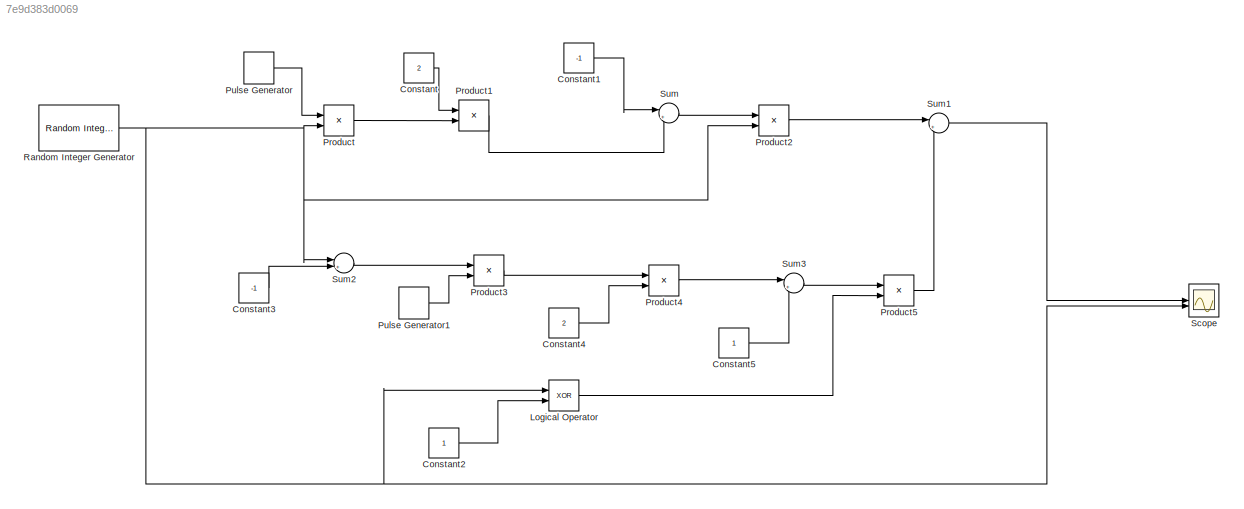
MODEL slx_7e9d383d0069
KIND model
CONFIG AbsTol = auto
CONFIG EnableMultiTasking = off
CONFIG FixedStep = auto
CONFIG MaxStep = auto
CONFIG MinStep = auto
CONFIG RelTol = 1e-3
CONFIG SampleTimeConstraint = Unconstrained
CONFIG SolverName = VariableStepAuto
CONFIG StartTime = 0.0
CONFIG StopTime = 10.0
BLOCK [Constant] Constant
  Value = 2
BLOCK [Constant] Constant1
  Value = -1
BLOCK [Constant] Constant2
BLOCK [Constant] Constant3
  Value = -1
BLOCK [Constant] Constant4
  Value = 2
BLOCK [Constant] Constant5
BLOCK [Logic] Logical Operator
  AllPortsSameDT = off
  Operator = XOR
  OutDataTypeStr = boolean
BLOCK [Product] Product
BLOCK [Product] Product1
BLOCK [Product] Product2
BLOCK [Product] Product3
BLOCK [Product] Product4
BLOCK [Product] Product5
BLOCK [DiscretePulseGenerator] Pulse Generator
  Period = 0.1
  PulseType = Time based
  PulseWidth = 50
BLOCK [DiscretePulseGenerator] Pulse Generator1
  Period = 0.1
  PulseType = Time based
  PulseWidth = 50
BLOCK [Reference] Random Integer Generator  REF=commrandsrc3/Random Integer
Generator
  SourceBlock = commrandsrc3/Random Integer\nGenerator
  SourceType = Random Integer Generator
BLOCK [Scope] Scope
  Floating = off
  NumInputPorts = 2
  ScopeSpecificationString = Simulink.scopes.TimeScopeBlockCfg('CurrentConfiguration', extmgr.ConfigurationSet(extmgr.Configuration('Core','General UI',true,'DisplayFullSourceName',true),extmgr.Configuration('Core','Source UI',true),extmgr.Configuration('Sources','WiredSimulink',true),extmgr.Configuration('Visuals','Time Domain',true,'SerializedDisplays',{struct('MinYLimReal','-5','MaxYLimReal','5','YLabelReal','','MinYLimMag...<+2181ch>
BLOCK [Sum] Sum
  Inputs = |++
BLOCK [Sum] Sum1
  Inputs = |++
BLOCK [Sum] Sum2
  Inputs = |++
BLOCK [Sum] Sum3
  Inputs = |++
LINE Constant1:1 -> Sum:1
LINE Constant2:1 -> Logical Operator:2
LINE Constant3:1 -> Sum2:2
LINE Constant4:1 -> Product4:2
LINE Constant5:1 -> Sum3:2
LINE Constant:1 -> Product1:1
LINE Logical Operator:1 -> Product5:2
LINE Product1:1 -> Sum:2
LINE Product2:1 -> Sum1:1
LINE Product3:1 -> Product4:1
LINE Product4:1 -> Sum3:1
LINE Product5:1 -> Sum1:2
LINE Product:1 -> Product1:2
LINE Pulse Generator1:1 -> Product3:2
LINE Pulse Generator:1 -> Product:1
NET Random Integer Generator:1 -> Logical Operator:1, Product2:2, Product:2, Scope:2, Sum2:1
LINE Sum1:1 -> Scope:1
LINE Sum2:1 -> Product3:1
LINE Sum3:1 -> Product5:1
LINE Sum:1 -> Product2:1
note: NET lines group one-source signal fan-out (src -> all destinations, sorted); 1:1 wires keep LINE
